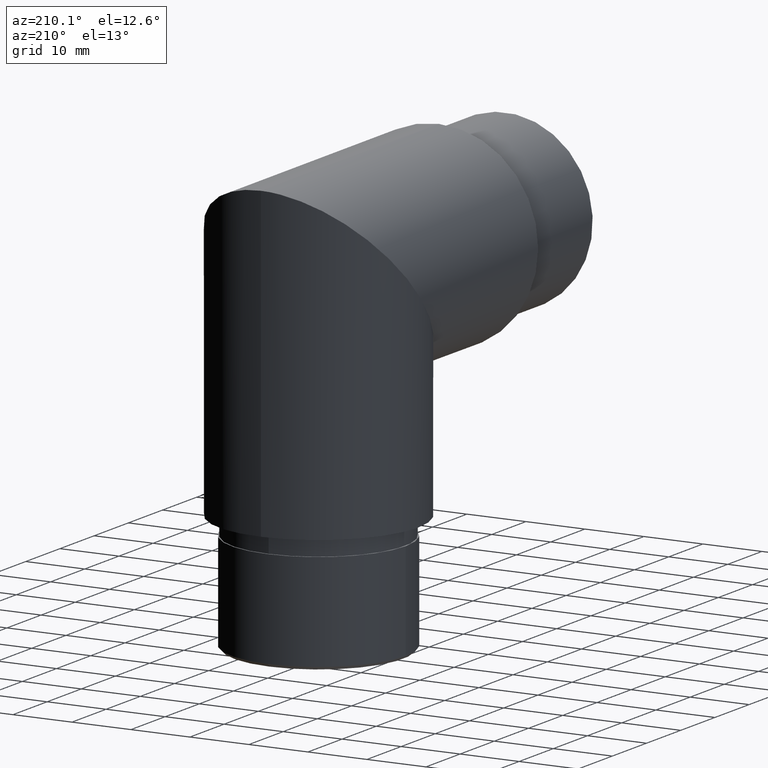
[diagram: clean part render]
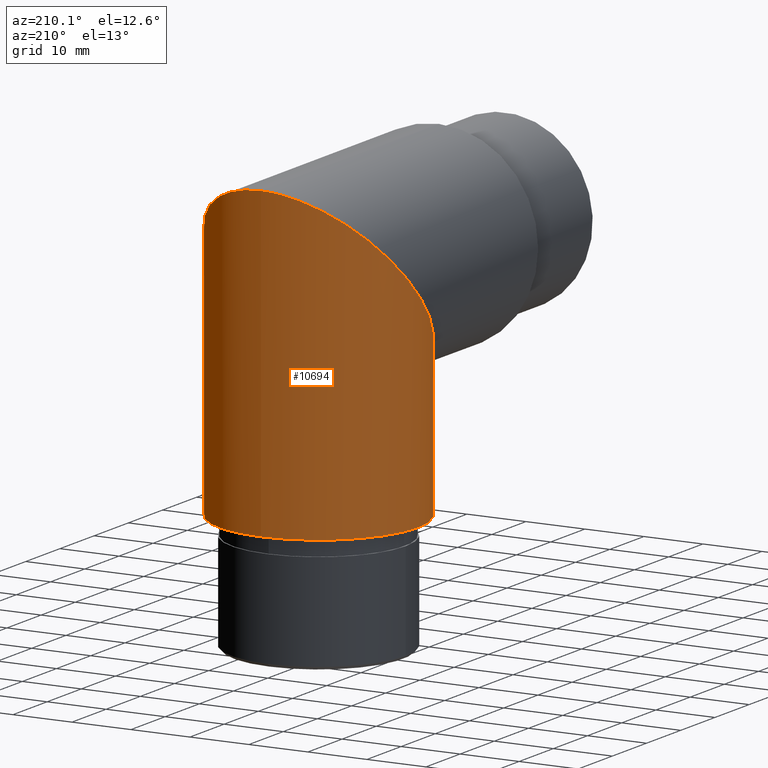
[diagram: same view with one face highlighted and labeled with its STEP entity id]
A machine part, auxiliary view. The second image highlights one B-rep face of the part: STEP entity #10694.
In plain terms, the highlighted cylindrical surface (bore or boss wall) has radius 16.85 mm, axis along (0, -0, -1).
Its self-contained STEP definition (entity closure, byte-faithful):
#327 = CARTESIAN_POINT ( 'NONE',  ( 33.70000000000000300, 18.29999999999993300, -16.85000000000000100 ) ) ;
#2825 = CIRCLE ( 'NONE', #8591, 16.84999999999999800 ) ;
#2897 = DIRECTION ( 'NONE',  ( -0.0000000000000000000, 3.750753461571474600E-015, 1.000000000000000000 ) ) ;
#3050 = EDGE_LOOP ( 'NONE', ( #6980 ) ) ;
#3062 = CARTESIAN_POINT ( 'NONE',  ( -2.063529856563290600E-015, 52.00000000000005700, 16.85000000000000100 ) ) ;
#3193 = AXIS2_PLACEMENT_3D ( 'NONE', #5046, #10720, #9675 ) ;
#4410 = CARTESIAN_POINT ( 'NONE',  ( 0.0000000000000000000, 51.99999999999986500, -35.15000000000006300 ) ) ;
#4429 = FACE_OUTER_BOUND ( 'NONE', #3050, .T. ) ;
#4717 = VERTEX_POINT ( 'NONE', #4410 ) ;
#4908 = EDGE_CURVE ( 'NONE', #4717, #4717, #2825, .T. ) ;
#5046 = CARTESIAN_POINT ( 'NONE',  ( 0.0000000000000000000, 35.14999999999999900, 0.0000000000000000000 ) ) ;
#5283 = FACE_OUTER_BOUND ( 'NONE', #5346, .T. ) ;
#5346 = EDGE_LOOP ( 'NONE', ( #6240 ) ) ;
#5850 = VERTEX_POINT ( 'NONE', #10765 ) ;
#6240 = ORIENTED_EDGE ( 'NONE', *, *, #6527, .T. ) ;
#6527 = EDGE_CURVE ( 'NONE', #5850, #5850, #8375, .T. ) ;
#6626 = CARTESIAN_POINT ( 'NONE',  ( -33.70000000000000300, 18.29999999999993300, -16.85000000000000100 ) ) ;
#6754 = CARTESIAN_POINT ( 'NONE',  ( 0.0000000000000000000, 18.29999999999993700, -16.85000000000000100 ) ) ;
#6980 = ORIENTED_EDGE ( 'NONE', *, *, #4908, .T. ) ;
#7646 = CARTESIAN_POINT ( 'NONE',  ( -33.70000000000000300, 52.00000000000005700, 16.84999999999999800 ) ) ;
#8375 =( BOUNDED_CURVE ( )  B_SPLINE_CURVE ( 3, ( #10429, #6626, #7646, #3062, #11351, #327, #6754 ),
 .UNSPECIFIED., .T., .T. ) 
 B_SPLINE_CURVE_WITH_KNOTS ( ( 4, 3, 4 ),
 ( 0.0000000000000000000, 3.141592653589793100, 6.283185307179586200 ),
 .UNSPECIFIED. ) 
 CURVE ( )  GEOMETRIC_REPRESENTATION_ITEM ( )  RATIONAL_B_SPLINE_CURVE ( ( 1.000000000000000000, 0.3333333333333333700, 0.3333333333333333700, 1.000000000000000000, 0.3333333333333333700, 0.3333333333333333700, 1.000000000000000000 ) ) 
 REPRESENTATION_ITEM ( '' )  );
#8460 = CYLINDRICAL_SURFACE ( 'NONE', #3193, 16.85000000000000500 ) ;
#8591 = AXIS2_PLACEMENT_3D ( 'NONE', #10181, #2897, #9321 ) ;
#9321 = DIRECTION ( 'NONE',  ( 0.0000000000000000000, 1.000000000000000000, -3.706234132650745700E-015 ) ) ;
#9675 = DIRECTION ( 'NONE',  ( 0.0000000000000000000, 1.000000000000000000, -3.750753461571474600E-015 ) ) ;
#10181 = CARTESIAN_POINT ( 'NONE',  ( 0.0000000000000000000, 35.14999999999987100, -35.14999999999999900 ) ) ;
#10429 = CARTESIAN_POINT ( 'NONE',  ( 0.0000000000000000000, 18.29999999999993700, -16.85000000000000100 ) ) ;
#10694 = ADVANCED_FACE ( 'NONE', ( #5283, #4429 ), #8460, .T. ) ;
#10720 = DIRECTION ( 'NONE',  ( 0.0000000000000000000, -3.750753461571475400E-015, -1.000000000000000000 ) ) ;
#10765 = CARTESIAN_POINT ( 'NONE',  ( 0.0000000000000000000, 18.29999999999993700, -16.85000000000000100 ) ) ;
#11351 = CARTESIAN_POINT ( 'NONE',  ( 33.70000000000000300, 52.00000000000006400, 16.85000000000000500 ) ) ;